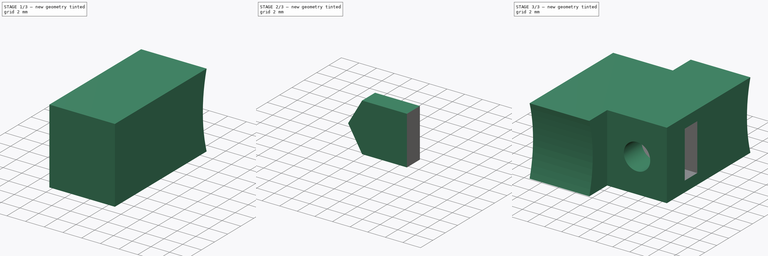
[diagram: build sequence overview — one tinted view per stage of 3, left to right]
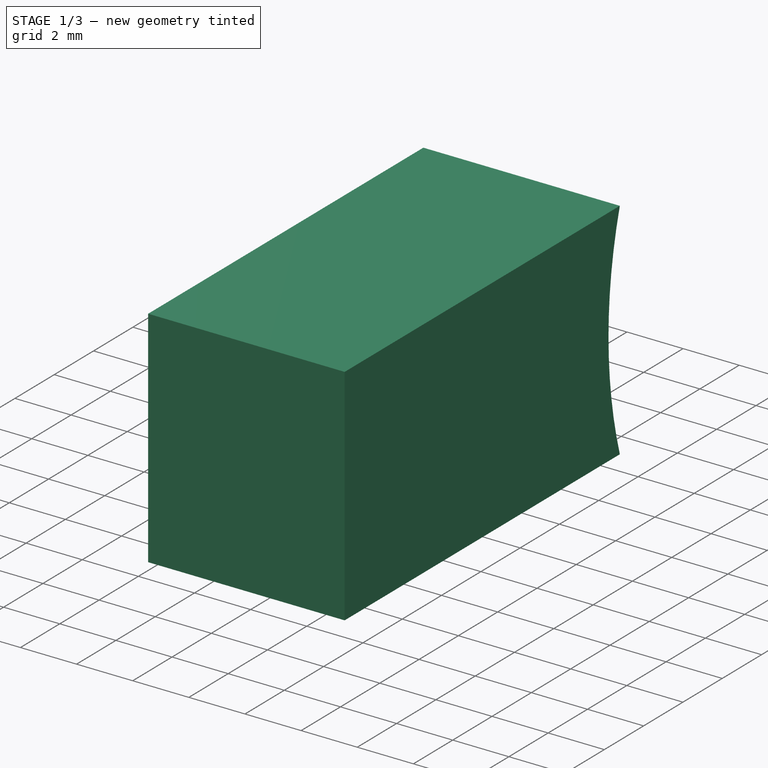
[diagram: stage 1 of 3 — iso view after this stage's code; geometry added in this stage tinted green]
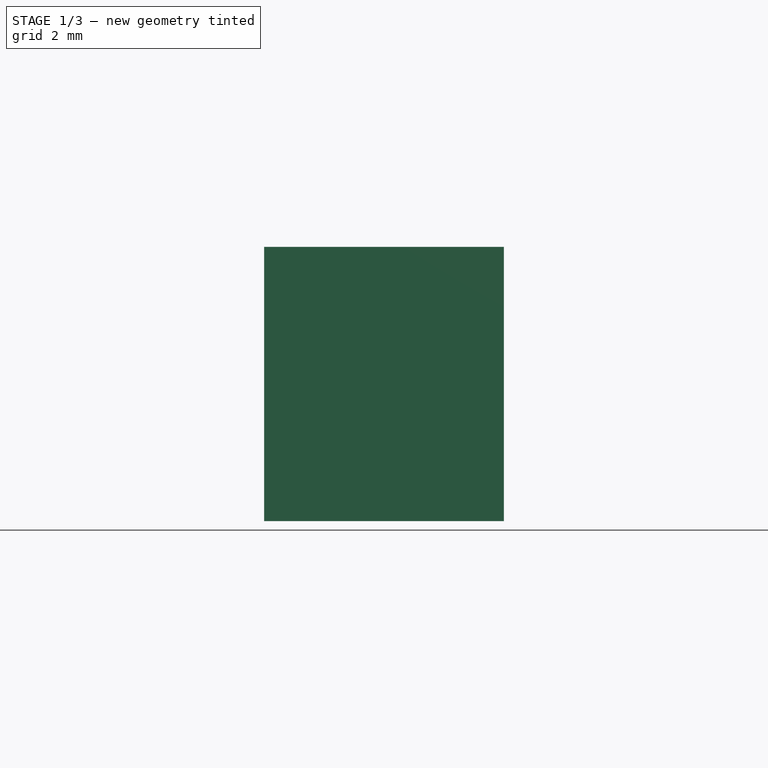
[diagram: stage 1 of 3 — front view after this stage's code; geometry added in this stage tinted green]
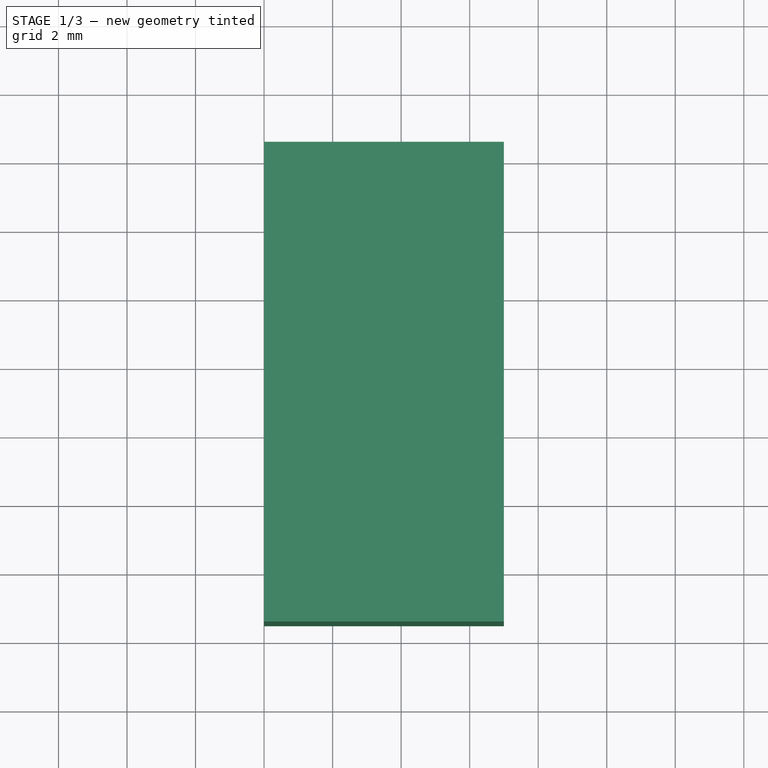
[diagram: stage 1 of 3 — top view after this stage's code; geometry added in this stage tinted green]
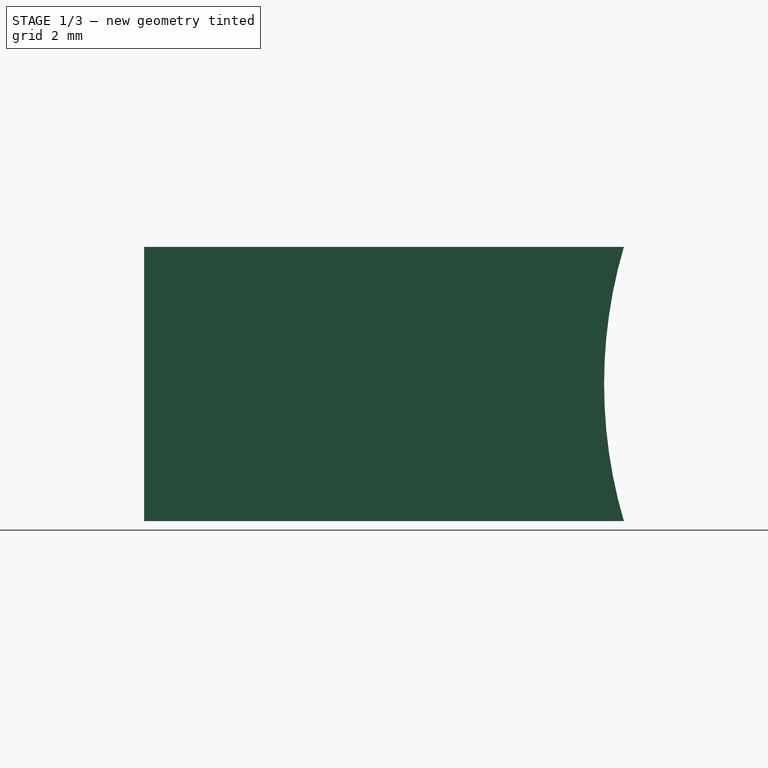
[diagram: stage 1 of 3 — right view after this stage's code; geometry added in this stage tinted green]
FCSTD DOCUMENT  (FreeCAD 0.16RUnknown)
Label: joint-base-u.010.1
License: All rights reserved
LicenseURL: http://en.wikipedia.org/wiki/All_rights_reserved
objects: Sketcher::SketchObject×4, Part::Extrusion×2, PartDesign::Pocket×2, Part::Cut×1, Part::Feature×1, Part::MultiFuse×1
note: 13 computed .brp shape members not serialized (recipe doc carries the construction recipe); baked Part::Feature solids carry a one-line shape summary decoded from their .brp

FEATURE [Sketcher::SketchObject] Sketch
  sketch-geometry (6):
    g0: LineSegment StartX=0 StartY=-5.5 StartZ=0 EndX=7 EndY=-5.5 EndZ=0
    g1: LineSegment StartX=7 StartY=-5.5 StartZ=0 EndX=7 EndY=8.5 EndZ=0
    g2: LineSegment StartX=7 StartY=8.5 StartZ=0 EndX=0 EndY=8.5 EndZ=0
    g3: LineSegment StartX=0 StartY=8.5 StartZ=0 EndX=0 EndY=5.5 EndZ=0
    g4: LineSegment StartX=0 StartY=5.5 StartZ=0 EndX=0 EndY=0 EndZ=0
    g5: LineSegment StartX=0 StartY=0 StartZ=0 EndX=0 EndY=-5.5 EndZ=0
  constraints (17):
    c: Coincident(g0,g1)
    c: Coincident(g1,g2)
    c: Horizontal(g0)
    c: Horizontal(g2)
    c: Vertical(g1)
    c: DistanceX(g2,g2) = 7
    c: DistanceY(g1,g1) = 14
    c: Vertical(g3)
    c: Coincident(g3,g4)
    c: Vertical(g4)
    c: Coincident(g4,g5)
    c: Vertical(g5)
    c: Coincident(g0,g5)
    c: Equal(g4,g5)
    c: Coincident(g2,g3)
    c: DistanceY(g3,g3) = 3
    c: Coincident(g4,g-1)
FEATURE [Part::Extrusion] Extrude
  Base = -> Sketch
  Dir = (0,0,8)
  Solid = true
FEATURE [Sketcher::SketchObject] Sketch001
  ExternalGeometry = -> [Extrude]
  Placement = pos=(0,0,0) rot=(0.57735,-0.57735,-0.57735;2.0944rad)
  Support = -> Extrude [Face4]
  sketch-geometry (2):
    g0: ArcOfCircle CenterX=-22.0729 CenterY=4 CenterZ=0 NormalX=0 NormalY=0 NormalZ=1 Radius=14.15 StartAngle=5.99659 EndAngle=6.56978
    g1: LineSegment StartX=-8.5 StartY=8 StartZ=0 EndX=-8.5 EndY=0 EndZ=0
  constraints (6):
    c: Vertical(g1)
    c: Coincident(g0,g1)
    c: Coincident(g0,g-3)
    c: Coincident(g0,g1)
    c: Coincident(g0,g-3)
    c: Radius(g0) = 14.15
FEATURE [PartDesign::Pocket] Pocket
  Length = 5
  Sketch = -> Sketch001
  Type = 1
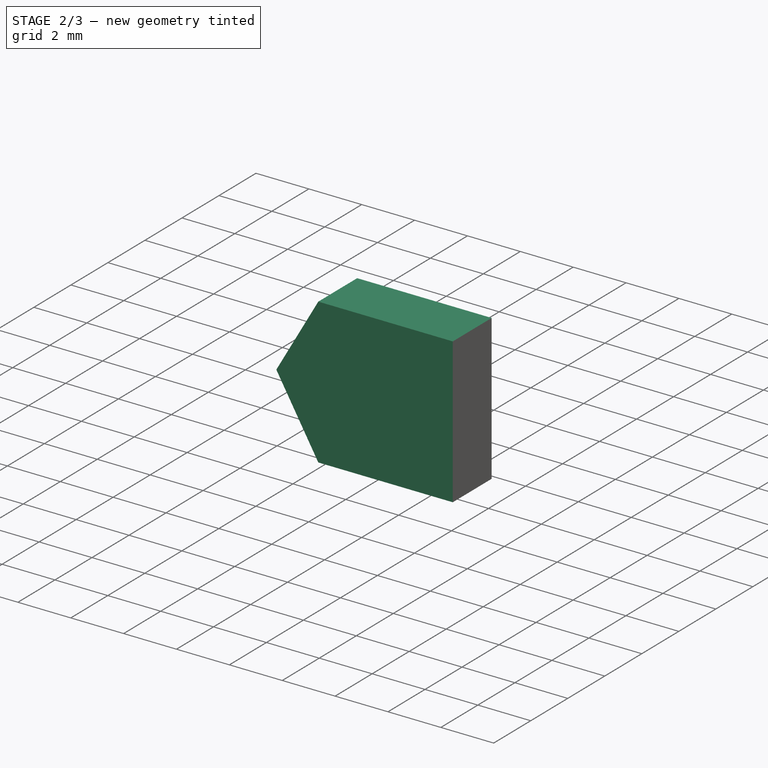
[diagram: stage 2 of 3 — iso view after this stage's code; geometry added in this stage tinted green]
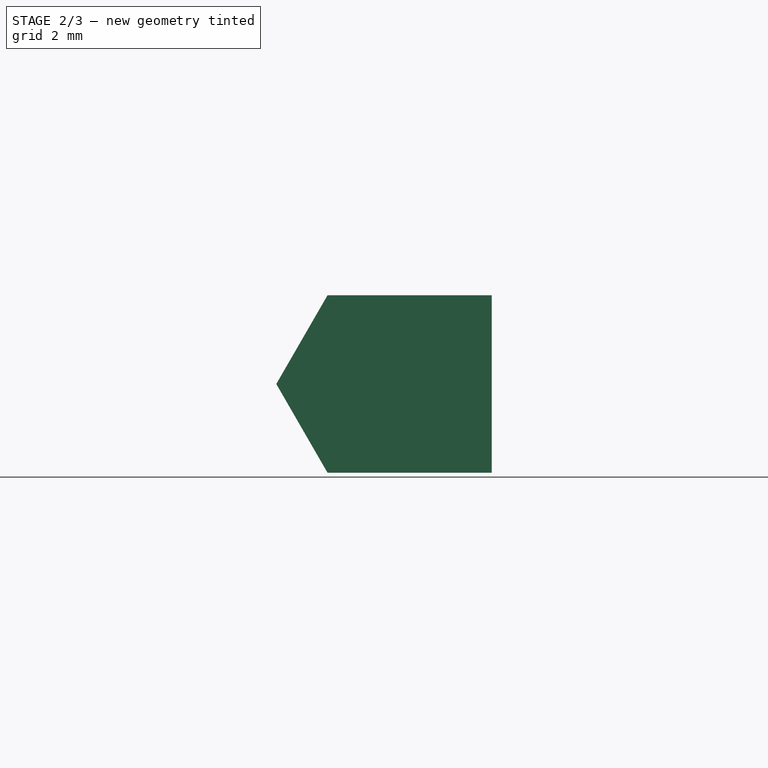
[diagram: stage 2 of 3 — front view after this stage's code; geometry added in this stage tinted green]
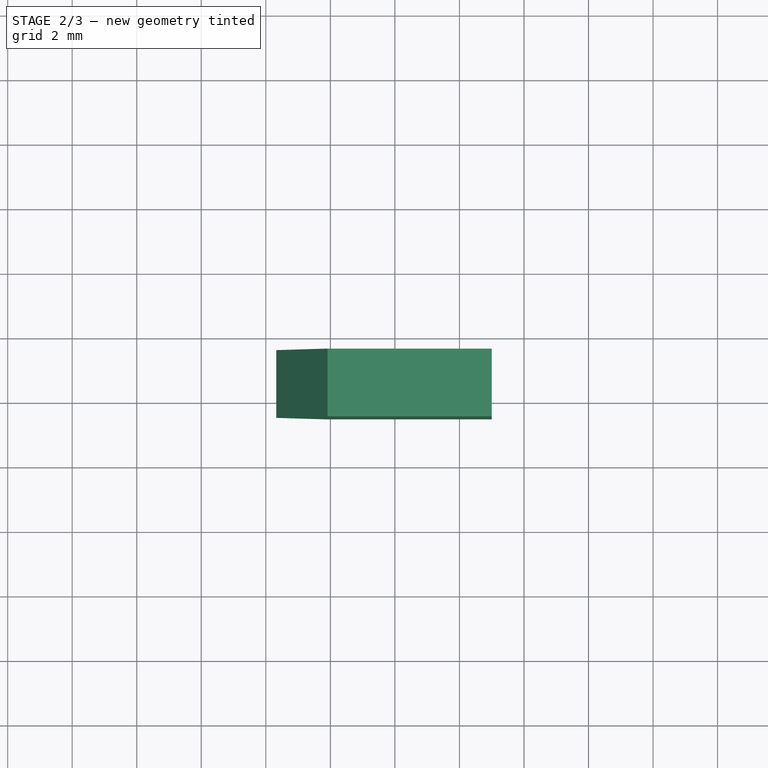
[diagram: stage 2 of 3 — top view after this stage's code; geometry added in this stage tinted green]
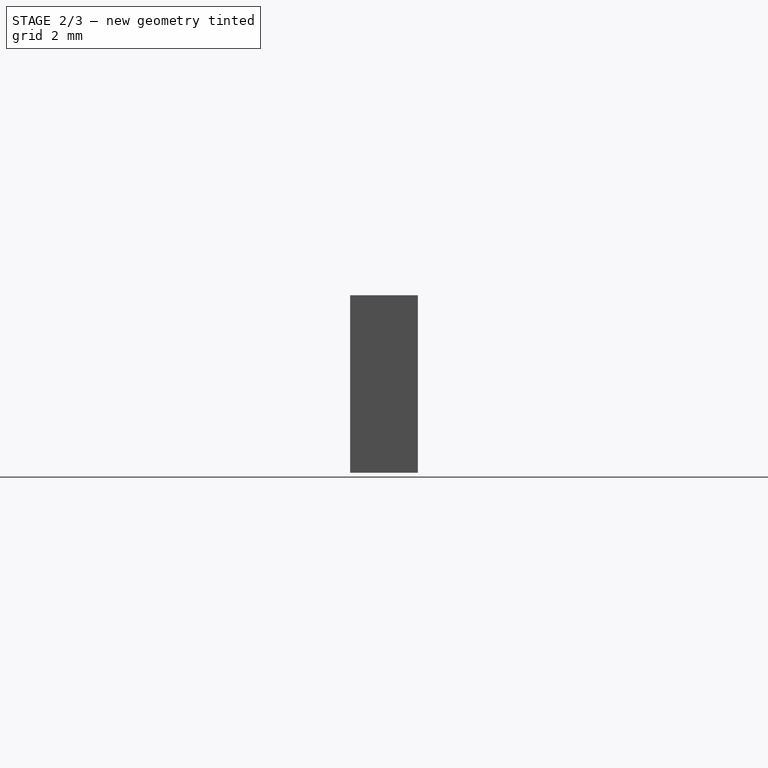
[diagram: stage 2 of 3 — right view after this stage's code; geometry added in this stage tinted green]
FEATURE [Sketcher::SketchObject] Sketch002
  ExternalGeometry = -> [Pocket]
  Placement = pos=(0,-5.5,0) rot=(1,0,0;1.5708rad)
  Support = -> Pocket [Face1]
  sketch-geometry (3):
    g0: LineSegment [constr] StartX=0 StartY=0 StartZ=0 EndX=3.5 EndY=4 EndZ=0
    g1: LineSegment [constr] StartX=3.5 StartY=4 StartZ=0 EndX=7 EndY=8 EndZ=0
    g2: Circle CenterX=3.5 CenterY=4 CenterZ=0 NormalX=0 NormalY=0 NormalZ=1 Radius=1.55
  constraints (7):
    c: Coincident(g0,g1)
    c: Coincident(g1,g-3)
    c: Coincident(g0,g-4)
    c: Equal(g0,g1)
    c: Parallel(g0,g1)
    c: Coincident(g0,g2)
    c: Radius(g2) = 1.55
FEATURE [PartDesign::Pocket] Pocket001
  Length = 7
  Sketch = -> Sketch002
  Type = 0
FEATURE [Sketcher::SketchObject] Sketch003
  ExternalGeometry = -> [Pocket001]
  Placement = pos=(0,-5.5,0) rot=(1,0,0;1.5708rad)
  Support = -> Pocket001 [Face1]
  sketch-geometry (6):
    g0: LineSegment [constr] StartX=3.5 StartY=4 StartZ=0 EndX=0.324574 EndY=4 EndZ=0
    g1: LineSegment StartX=0.324574 StartY=4 StartZ=0 EndX=1.91229 EndY=6.75 EndZ=0
    g2: LineSegment StartX=1.91229 StartY=6.75 StartZ=0 EndX=7 EndY=6.75 EndZ=0
    g3: LineSegment StartX=7 StartY=6.75 StartZ=0 EndX=7 EndY=1.25 EndZ=0
    g4: LineSegment StartX=7 StartY=1.25 StartZ=0 EndX=1.91229 EndY=1.25 EndZ=0
    g5: LineSegment StartX=1.91229 StartY=1.25 StartZ=0 EndX=0.324574 EndY=4 EndZ=0
  constraints (17):
    c: Horizontal(g0)
    c: Coincident(g0,g1)
    c: Coincident(g1,g2)
    c: Horizontal(g2)
    c: Coincident(g2,g3)
    c: Vertical(g3)
    c: Coincident(g3,g4)
    c: Horizontal(g4)
    c: Coincident(g4,g5)
    c: Coincident(g0,g5)
    c: Coincident(g0,g-4)
    c: Equal(g1,g0)
    c: Equal(g0,g5)
    c: Angle(g5,g1) = 2.0944
    c: Equal(g2,g4)
    c: DistanceY(g3,g3) = 5.5
    c: PointOnObject(g2,g-3)
FEATURE [Part::Extrusion] Extrude001
  Base = -> Sketch003
  Dir = (0,2.1,0)
  Placement = pos=(0,3,0) rot=(0,0,1;0rad)
  Solid = true
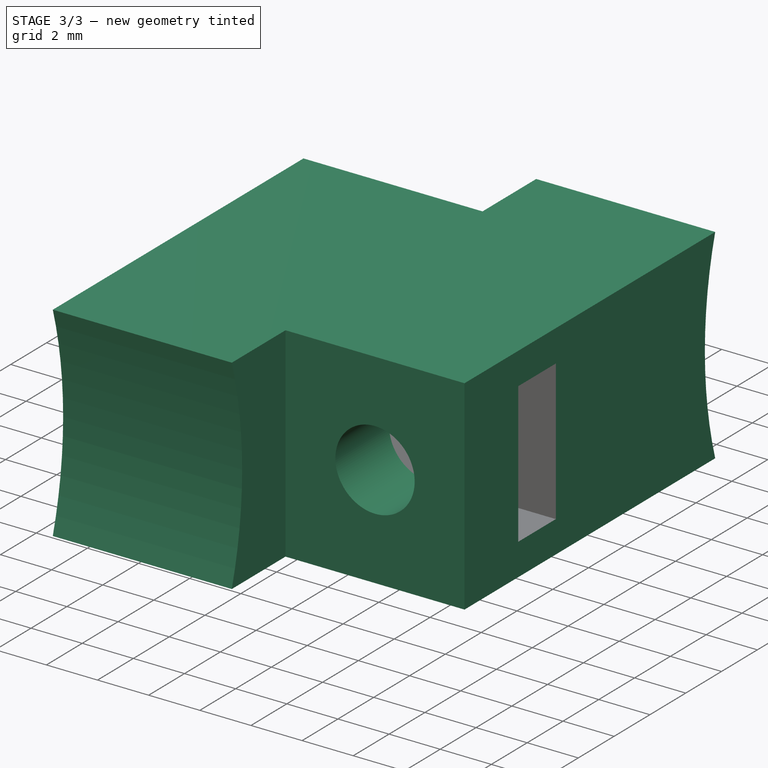
[diagram: stage 3 of 3 — iso view after this stage's code; geometry added in this stage tinted green]
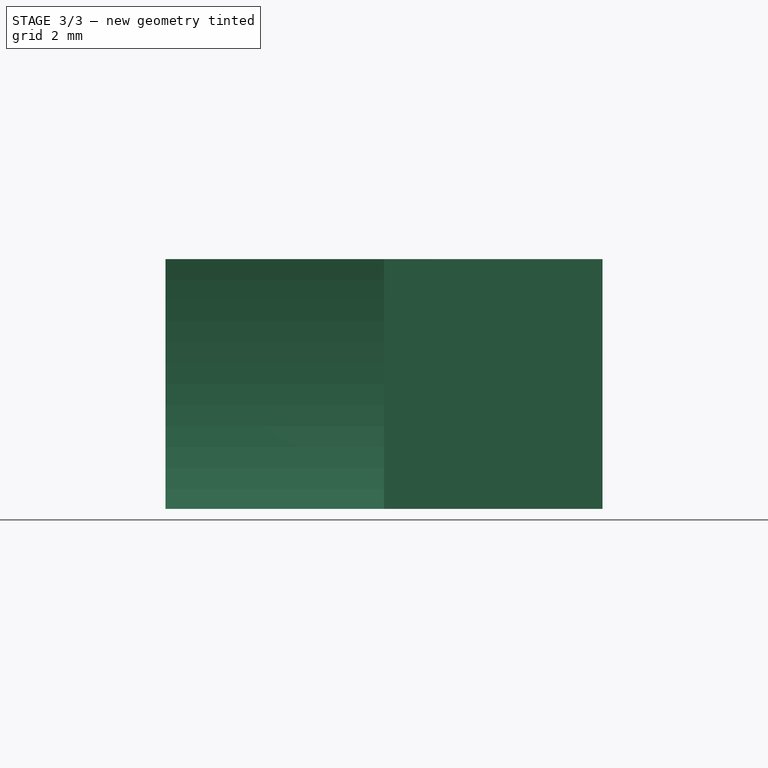
[diagram: stage 3 of 3 — front view after this stage's code; geometry added in this stage tinted green]
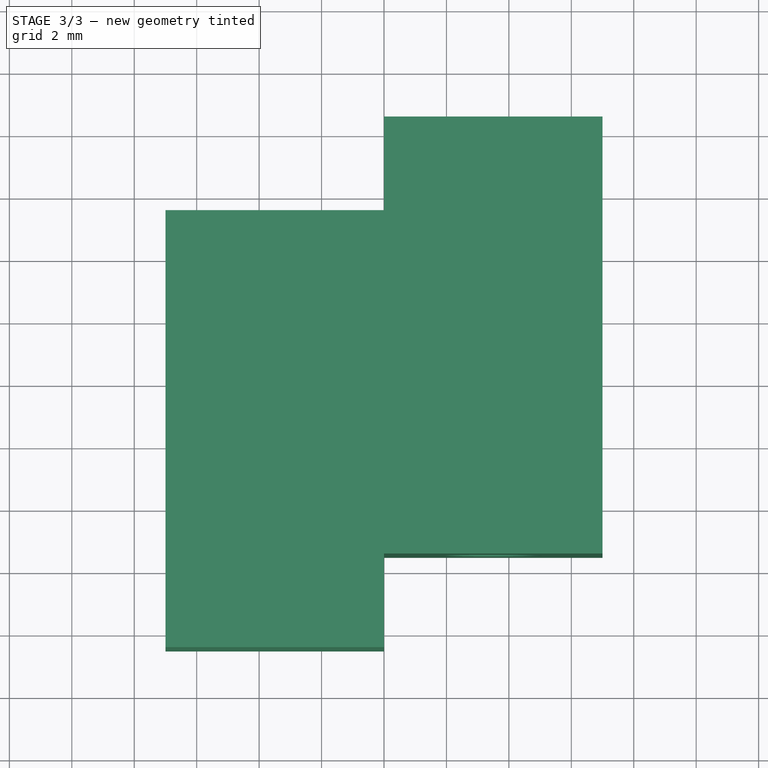
[diagram: stage 3 of 3 — top view after this stage's code; geometry added in this stage tinted green]
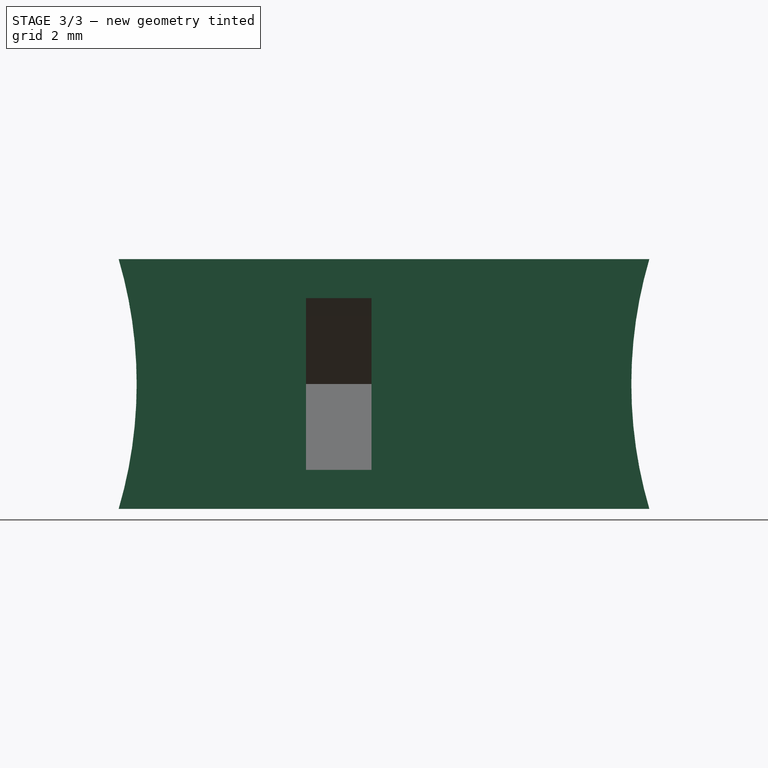
[diagram: stage 3 of 3 — right view after this stage's code; geometry added in this stage tinted green]
FEATURE [Part::Cut] Cut
  Base = -> Pocket001
  Tool = -> Extrude001
FEATURE [Part::Feature] Cut001
  Placement = pos=(0,0,0) rot=(0,0,1;3.14159rad)
  shape: bbox 7 x 14 x 8 mm, 17 faces (baked)
FEATURE [Part::MultiFuse] Fusion
  Shapes = -> [Cut,Cut001]
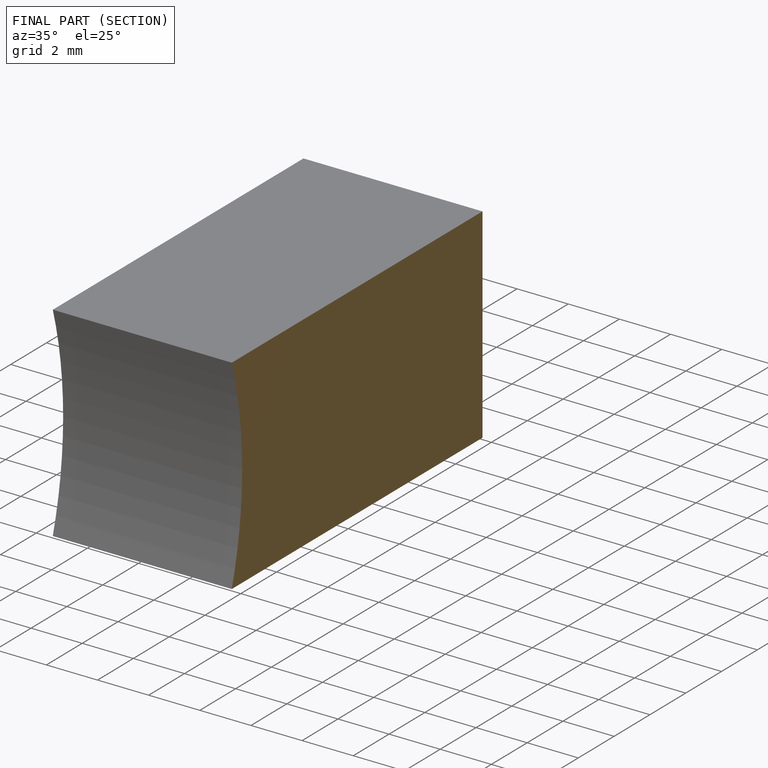
[diagram: finished part — half-section view (interior)]
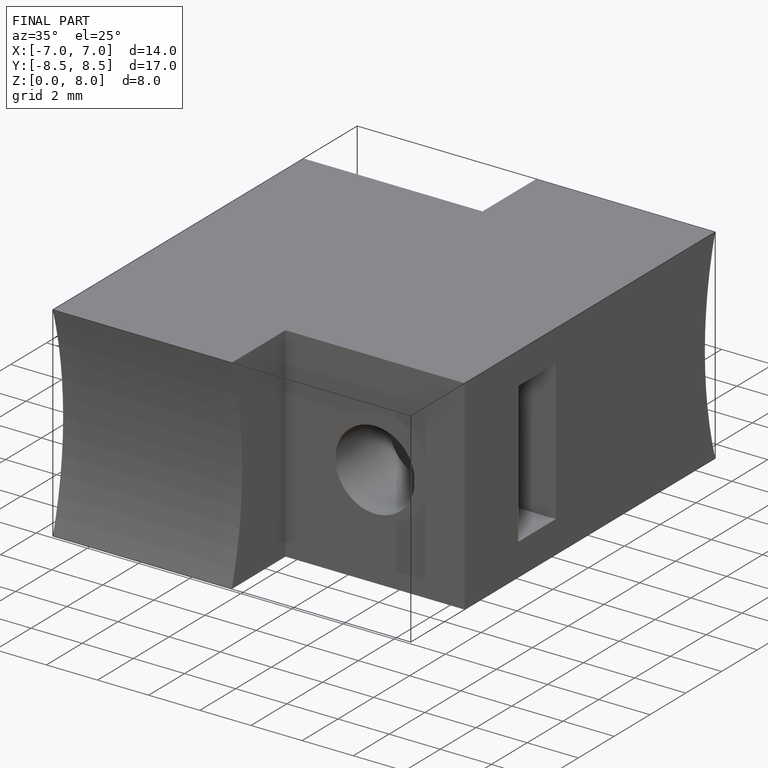
[diagram: finished part — iso view with bounding-box wireframe]
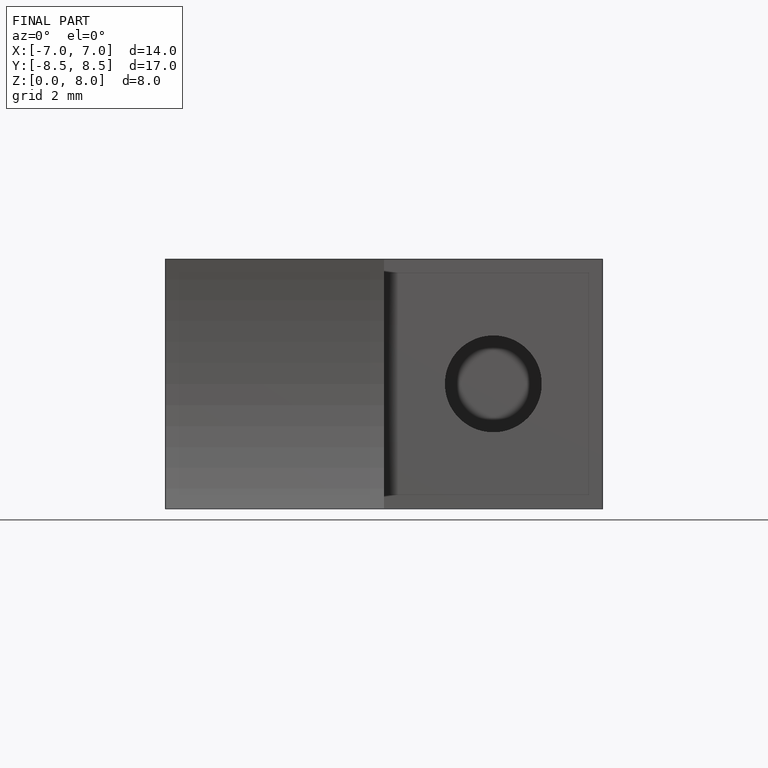
[diagram: finished part — front view with bounding-box wireframe]
